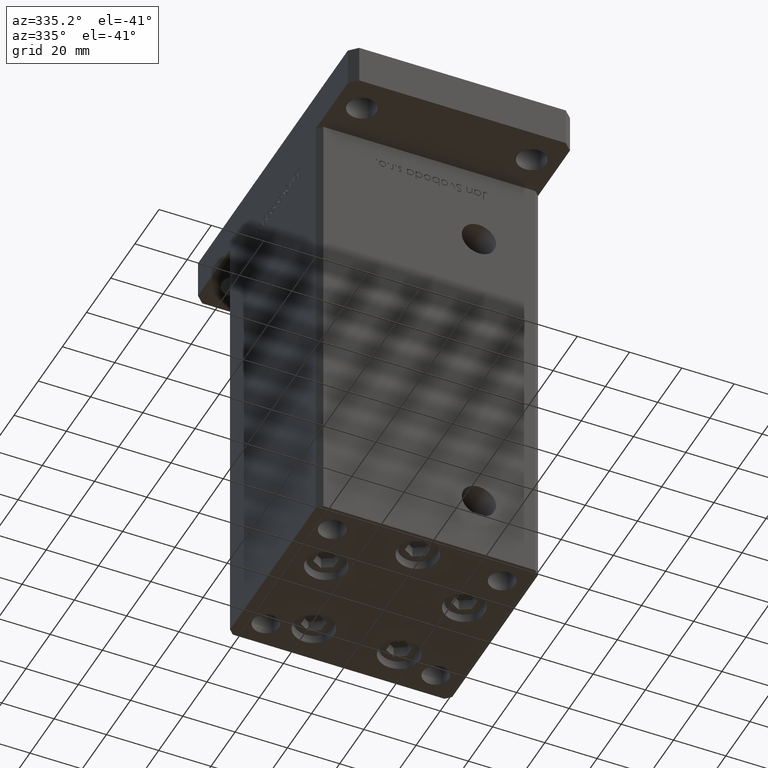
[diagram: clean part render]
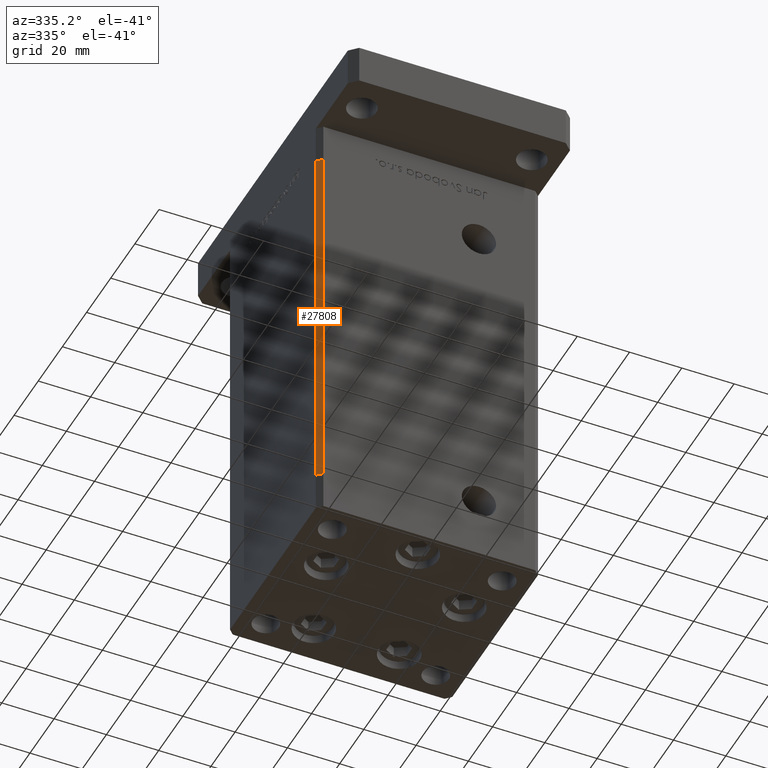
[diagram: same view with one face highlighted and labeled with its STEP entity id]
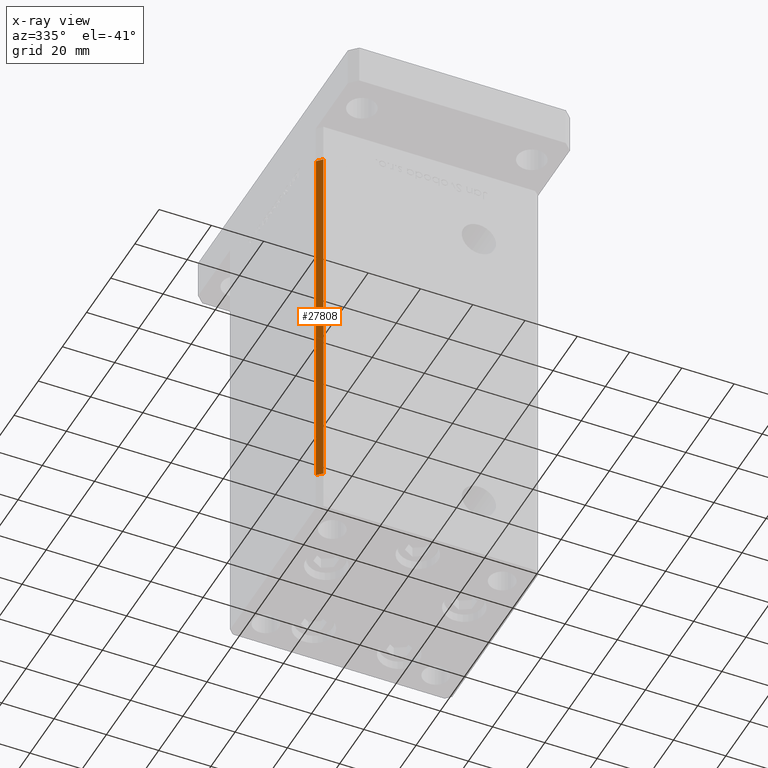
[diagram: x-ray of the same camera — body ghosted, the highlighted face saturated]
A machine part, auxiliary view. The second image highlights one B-rep face of the part: STEP entity #27808.
The next image is the same camera in x-ray: the body ghosted, the highlighted face saturated — about 0% of this face is hidden behind the body in this view.
In plain terms, the highlighted planar face has unit normal (0.7071, 0.7071, 0).
Its self-contained STEP definition (entity closure, byte-faithful):
#366 = AXIS2_PLACEMENT_3D ( 'NONE', #13100, #34798, #51337 ) ;
#1960 = CARTESIAN_POINT ( 'NONE',  ( -42.49999999999998579, -35.50000000000000711, 0.000000000000000000 ) ) ;
#2149 = VECTOR ( 'NONE', #3564, 1000.000000000000000 ) ;
#2831 = DIRECTION ( 'NONE',  ( -0.000000000000000000, -0.000000000000000000, -1.000000000000000000 ) ) ;
#3464 = VERTEX_POINT ( 'NONE', #37835 ) ;
#3564 = DIRECTION ( 'NONE',  ( -0.000000000000000000, -0.000000000000000000, -1.000000000000000000 ) ) ;
#4503 = EDGE_CURVE ( 'NONE', #3464, #37063, #32404, .T. ) ;
#5445 = ORIENTED_EDGE ( 'NONE', *, *, #51055, .T. ) ;
#9911 = ORIENTED_EDGE ( 'NONE', *, *, #28957, .F. ) ;
#10409 = LINE ( 'NONE', #23459, #20329 ) ;
#13100 = CARTESIAN_POINT ( 'NONE',  ( -42.49999999999998579, -35.50000000000000711, 144.5000000000000000 ) ) ;
#14962 = ORIENTED_EDGE ( 'NONE', *, *, #29493, .T. ) ;
#18495 = DIRECTION ( 'NONE',  ( 0.7071067811865474617, -0.7071067811865474617, 0.000000000000000000 ) ) ;
#20329 = VECTOR ( 'NONE', #2831, 1000.000000000000000 ) ;
#20370 = LINE ( 'NONE', #23934, #2149 ) ;
#21270 = PLANE ( 'NONE',  #366 ) ;
#23459 = CARTESIAN_POINT ( 'NONE',  ( -42.49999999999998579, -35.50000000000000711, 144.5000000000000000 ) ) ;
#23934 = CARTESIAN_POINT ( 'NONE',  ( -40.49999999999998579, -37.50000000000000711, 144.5000000000000000 ) ) ;
#25648 = CARTESIAN_POINT ( 'NONE',  ( -42.49999999999998579, -35.50000000000000711, 0.000000000000000000 ) ) ;
#27808 = ADVANCED_FACE ( 'NONE', ( #50821 ), #21270, .F. ) ;
#28957 = EDGE_CURVE ( 'NONE', #37063, #43063, #20370, .T. ) ;
#29474 = CARTESIAN_POINT ( 'NONE',  ( -40.49999999999998579, -37.50000000000000711, 0.000000000000000000 ) ) ;
#29493 = EDGE_CURVE ( 'NONE', #3464, #32716, #10409, .T. ) ;
#32404 = LINE ( 'NONE', #45126, #41836 ) ;
#32716 = VERTEX_POINT ( 'NONE', #25648 ) ;
#34798 = DIRECTION ( 'NONE',  ( 0.7071067811865475727, 0.7071067811865475727, -0.000000000000000000 ) ) ;
#37063 = VERTEX_POINT ( 'NONE', #40707 ) ;
#37835 = CARTESIAN_POINT ( 'NONE',  ( -42.49999999999998579, -35.50000000000000711, 144.5000000000000000 ) ) ;
#38060 = ORIENTED_EDGE ( 'NONE', *, *, #4503, .F. ) ;
#39682 = LINE ( 'NONE', #1960, #42015 ) ;
#39992 = DIRECTION ( 'NONE',  ( 0.7071067811865474617, -0.7071067811865474617, 0.000000000000000000 ) ) ;
#40707 = CARTESIAN_POINT ( 'NONE',  ( -40.49999999999998579, -37.50000000000000711, 144.5000000000000000 ) ) ;
#41836 = VECTOR ( 'NONE', #39992, 1000.000000000000114 ) ;
#42015 = VECTOR ( 'NONE', #18495, 1000.000000000000114 ) ;
#43063 = VERTEX_POINT ( 'NONE', #29474 ) ;
#45126 = CARTESIAN_POINT ( 'NONE',  ( -42.49999999999998579, -35.50000000000000711, 144.5000000000000000 ) ) ;
#50821 = FACE_OUTER_BOUND ( 'NONE', #51889, .T. ) ;
#51055 = EDGE_CURVE ( 'NONE', #32716, #43063, #39682, .T. ) ;
#51337 = DIRECTION ( 'NONE',  ( -0.7071067811865474617, 0.7071067811865474617, 0.000000000000000000 ) ) ;
#51889 = EDGE_LOOP ( 'NONE', ( #5445, #9911, #38060, #14962 ) ) ;